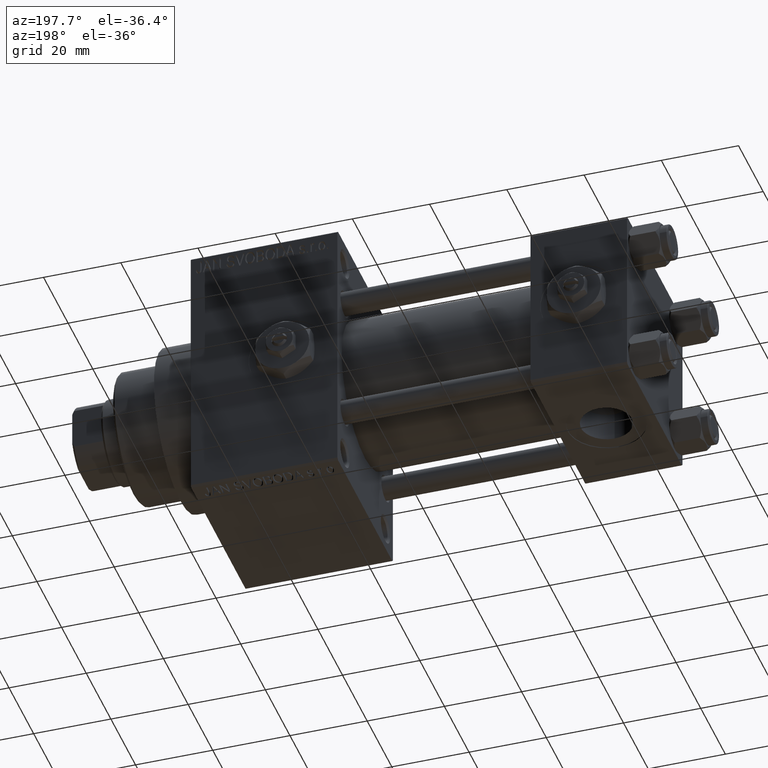
[diagram: clean part render]
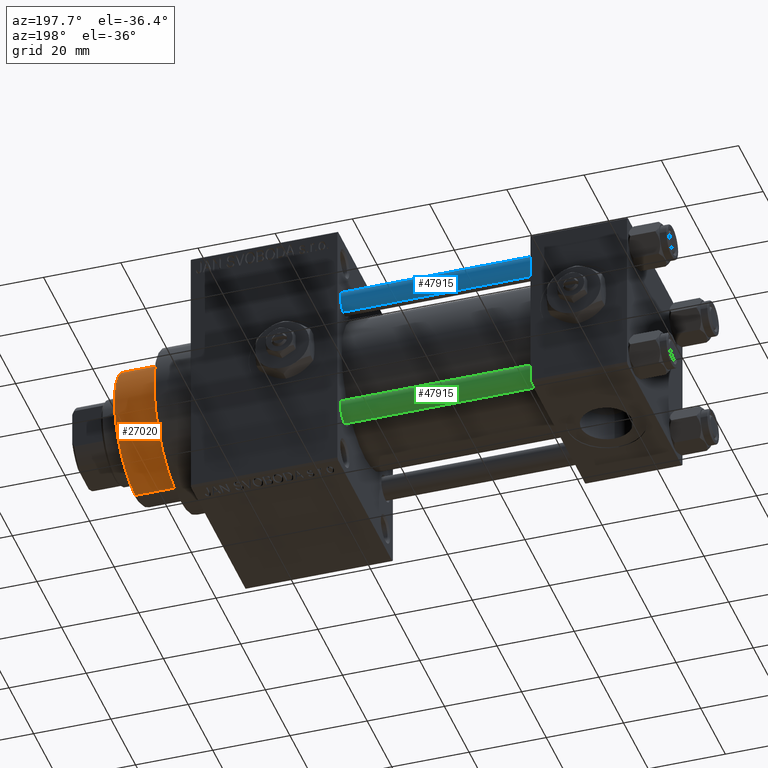
[diagram: same view with three faces highlighted in distinct colors, each labeled with its STEP entity id]
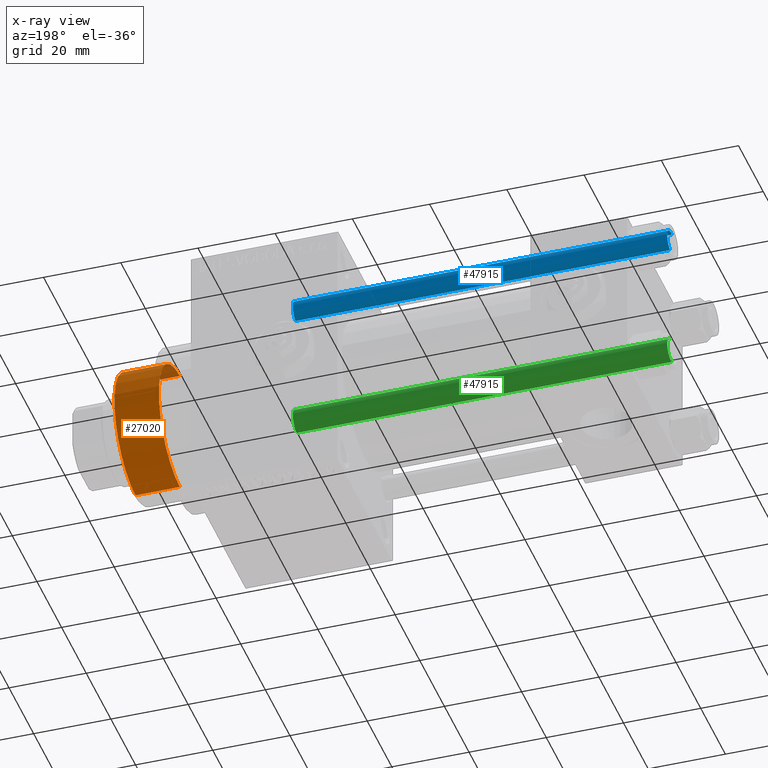
[diagram: x-ray of the same camera — body ghosted, the three highlighted faces saturated]
A machine part, auxiliary view with three faces highlighted in distinct colors.
The next image is the same camera in x-ray (body ghosted, the three faces saturated) — at least one of them is partly hidden behind the body in this view.
Their STEP definitions:

[orange] entity #27020 — the highlighted cylindrical surface (partial cylindrical patch) has radius 17 mm, axis along (-1, 0, 0).
#870 = CYLINDRICAL_SURFACE ( 'NONE', #14083, 17.00000000000000000 ) ;
#1911 = EDGE_CURVE ( 'NONE', #46963, #4127, #16570, .T. ) ;
#4127 = VERTEX_POINT ( 'NONE', #5128 ) ;
#4232 = ORIENTED_EDGE ( 'NONE', *, *, #13704, .T. ) ;
#5128 = CARTESIAN_POINT ( 'NONE',  ( -17.00000000000000000, 0.000000000000000000, 54.76000000000001222 ) ) ;
#10673 = CARTESIAN_POINT ( 'NONE',  ( 0.000000000000000000, 0.000000000000000000, 54.76000000000001222 ) ) ;
#10697 = CIRCLE ( 'NONE', #44794, 17.00000000000000000 ) ;
#11881 = VERTEX_POINT ( 'NONE', #35335 ) ;
#12088 = LINE ( 'NONE', #19990, #26778 ) ;
#12798 = FACE_OUTER_BOUND ( 'NONE', #35561, .T. ) ;
#13704 = EDGE_CURVE ( 'NONE', #4127, #11881, #40146, .T. ) ;
#14083 = AXIS2_PLACEMENT_3D ( 'NONE', #27929, #39607, #19737 ) ;
#16570 = CIRCLE ( 'NONE', #44339, 17.00000000000000000 ) ;
#17032 = CARTESIAN_POINT ( 'NONE',  ( -17.00000000000000000, 0.000000000000000000, 55.26000000000000512 ) ) ;
#18745 = DIRECTION ( 'NONE',  ( 1.000000000000000000, 0.000000000000000000, 0.000000000000000000 ) ) ;
#19737 = DIRECTION ( 'NONE',  ( -1.000000000000000000, 0.000000000000000000, 0.000000000000000000 ) ) ;
#19990 = CARTESIAN_POINT ( 'NONE',  ( 17.00000000000000000, 2.081899558550500280E-15, 55.26000000000000512 ) ) ;
#21993 = CARTESIAN_POINT ( 'NONE',  ( 0.000000000000000000, 0.000000000000000000, 43.25999999999999801 ) ) ;
#22234 = DIRECTION ( 'NONE',  ( 0.000000000000000000, 0.000000000000000000, 1.000000000000000000 ) ) ;
#23822 = ORIENTED_EDGE ( 'NONE', *, *, #1911, .T. ) ;
#26292 = ORIENTED_EDGE ( 'NONE', *, *, #46859, .T. ) ;
#26545 = VERTEX_POINT ( 'NONE', #42426 ) ;
#26778 = VECTOR ( 'NONE', #35652, 1000.000000000000000 ) ;
#27020 = ADVANCED_FACE ( 'NONE', ( #12798 ), #870, .T. ) ;
#27929 = CARTESIAN_POINT ( 'NONE',  ( 0.000000000000000000, 0.000000000000000000, 55.26000000000000512 ) ) ;
#28207 = DIRECTION ( 'NONE',  ( -0.000000000000000000, -0.000000000000000000, -1.000000000000000000 ) ) ;
#31067 = EDGE_CURVE ( 'NONE', #46963, #26545, #12088, .T. ) ;
#34398 = CARTESIAN_POINT ( 'NONE',  ( 17.00000000000000000, 2.081899558550500280E-15, 54.76000000000001222 ) ) ;
#35335 = CARTESIAN_POINT ( 'NONE',  ( -17.00000000000000000, 0.000000000000000000, 43.25999999999999801 ) ) ;
#35561 = EDGE_LOOP ( 'NONE', ( #46533, #23822, #4232, #26292 ) ) ;
#35652 = DIRECTION ( 'NONE',  ( -0.000000000000000000, -0.000000000000000000, -1.000000000000000000 ) ) ;
#36978 = DIRECTION ( 'NONE',  ( 1.000000000000000000, 0.000000000000000000, 0.000000000000000000 ) ) ;
#39093 = VECTOR ( 'NONE', #28207, 1000.000000000000000 ) ;
#39607 = DIRECTION ( 'NONE',  ( -0.000000000000000000, -0.000000000000000000, -1.000000000000000000 ) ) ;
#40146 = LINE ( 'NONE', #17032, #39093 ) ;
#42426 = CARTESIAN_POINT ( 'NONE',  ( 17.00000000000000000, 2.081899558550500280E-15, 43.25999999999999801 ) ) ;
#43949 = DIRECTION ( 'NONE',  ( 0.000000000000000000, 0.000000000000000000, -1.000000000000000000 ) ) ;
#44339 = AXIS2_PLACEMENT_3D ( 'NONE', #10673, #43949, #36978 ) ;
#44794 = AXIS2_PLACEMENT_3D ( 'NONE', #21993, #22234, #18745 ) ;
#46533 = ORIENTED_EDGE ( 'NONE', *, *, #31067, .F. ) ;
#46859 = EDGE_CURVE ( 'NONE', #11881, #26545, #10697, .T. ) ;
#46963 = VERTEX_POINT ( 'NONE', #34398 ) ;

[blue] entity #47915 — the highlighted cylindrical surface (edge-blend (fillet) strip) has radius 3 mm, axis along (-1, -0, 0).
#139 = CARTESIAN_POINT ( 'NONE',  ( 0.000000000000000000, 0.000000000000000000, 97.50000000000001421 ) ) ;
#620 = DIRECTION ( 'NONE',  ( 0.000000000000000000, 0.000000000000000000, -1.000000000000000000 ) ) ;
#1032 = DIRECTION ( 'NONE',  ( 1.000000000000000000, 0.000000000000000000, 0.000000000000000000 ) ) ;
#3072 = LINE ( 'NONE', #25668, #28278 ) ;
#3268 = CIRCLE ( 'NONE', #31035, 3.000000000000000444 ) ;
#3437 = AXIS2_PLACEMENT_3D ( 'NONE', #48791, #29911, #45069 ) ;
#6656 = VERTEX_POINT ( 'NONE', #12360 ) ;
#7755 = CARTESIAN_POINT ( 'NONE',  ( 3.000000000000000444, 3.673940397442060361E-16, 0.5000000000000281997 ) ) ;
#7913 = EDGE_CURVE ( 'NONE', #25225, #29424, #3268, .T. ) ;
#12308 = DIRECTION ( 'NONE',  ( 1.000000000000000000, 0.000000000000000000, 0.000000000000000000 ) ) ;
#12360 = CARTESIAN_POINT ( 'NONE',  ( -3.000000000000000444, 0.000000000000000000, 0.5000000000000281997 ) ) ;
#14292 = FACE_OUTER_BOUND ( 'NONE', #20004, .T. ) ;
#16180 = VERTEX_POINT ( 'NONE', #7755 ) ;
#16461 = AXIS2_PLACEMENT_3D ( 'NONE', #46978, #44190, #1032 ) ;
#18443 = DIRECTION ( 'NONE',  ( -0.000000000000000000, -0.000000000000000000, -1.000000000000000000 ) ) ;
#19353 = DIRECTION ( 'NONE',  ( -0.000000000000000000, -0.000000000000000000, -1.000000000000000000 ) ) ;
#19592 = LINE ( 'NONE', #25892, #37220 ) ;
#20004 = EDGE_LOOP ( 'NONE', ( #28927, #44370, #25026, #27645 ) ) ;
#24858 = CARTESIAN_POINT ( 'NONE',  ( -3.000000000000000444, 0.000000000000000000, 97.50000000000001421 ) ) ;
#25026 = ORIENTED_EDGE ( 'NONE', *, *, #27981, .T. ) ;
#25111 = EDGE_CURVE ( 'NONE', #25225, #6656, #3072, .T. ) ;
#25225 = VERTEX_POINT ( 'NONE', #24858 ) ;
#25668 = CARTESIAN_POINT ( 'NONE',  ( -3.000000000000000444, 0.000000000000000000, 98.00000000000000000 ) ) ;
#25892 = CARTESIAN_POINT ( 'NONE',  ( 3.000000000000000444, 3.673940397442060361E-16, 98.00000000000000000 ) ) ;
#27645 = ORIENTED_EDGE ( 'NONE', *, *, #25111, .F. ) ;
#27981 = EDGE_CURVE ( 'NONE', #16180, #6656, #38705, .T. ) ;
#28278 = VECTOR ( 'NONE', #18443, 1000.000000000000000 ) ;
#28927 = ORIENTED_EDGE ( 'NONE', *, *, #7913, .T. ) ;
#29422 = CYLINDRICAL_SURFACE ( 'NONE', #3437, 3.000000000000000444 ) ;
#29424 = VERTEX_POINT ( 'NONE', #30376 ) ;
#29911 = DIRECTION ( 'NONE',  ( -0.000000000000000000, -0.000000000000000000, -1.000000000000000000 ) ) ;
#30376 = CARTESIAN_POINT ( 'NONE',  ( 3.000000000000000444, 3.673940397442060361E-16, 97.50000000000001421 ) ) ;
#31035 = AXIS2_PLACEMENT_3D ( 'NONE', #139, #620, #12308 ) ;
#34416 = EDGE_CURVE ( 'NONE', #29424, #16180, #19592, .T. ) ;
#37220 = VECTOR ( 'NONE', #19353, 1000.000000000000000 ) ;
#38705 = CIRCLE ( 'NONE', #16461, 3.000000000000000444 ) ;
#44190 = DIRECTION ( 'NONE',  ( -0.000000000000000000, -0.000000000000000000, 1.000000000000000000 ) ) ;
#44370 = ORIENTED_EDGE ( 'NONE', *, *, #34416, .T. ) ;
#45069 = DIRECTION ( 'NONE',  ( -1.000000000000000000, 0.000000000000000000, 0.000000000000000000 ) ) ;
#46978 = CARTESIAN_POINT ( 'NONE',  ( 0.000000000000000000, 0.000000000000000000, 0.5000000000000281997 ) ) ;
#47915 = ADVANCED_FACE ( 'NONE', ( #14292 ), #29422, .T. ) ;
#48791 = CARTESIAN_POINT ( 'NONE',  ( 0.000000000000000000, 0.000000000000000000, 98.00000000000000000 ) ) ;

[green] entity #47915 — the highlighted cylindrical surface (edge-blend (fillet) strip) has radius 3 mm, axis along (1, -0, 0).
#139 = CARTESIAN_POINT ( 'NONE',  ( 0.000000000000000000, 0.000000000000000000, 97.50000000000001421 ) ) ;
#620 = DIRECTION ( 'NONE',  ( 0.000000000000000000, 0.000000000000000000, -1.000000000000000000 ) ) ;
#1032 = DIRECTION ( 'NONE',  ( 1.000000000000000000, 0.000000000000000000, 0.000000000000000000 ) ) ;
#3072 = LINE ( 'NONE', #25668, #28278 ) ;
#3268 = CIRCLE ( 'NONE', #31035, 3.000000000000000444 ) ;
#3437 = AXIS2_PLACEMENT_3D ( 'NONE', #48791, #29911, #45069 ) ;
#6656 = VERTEX_POINT ( 'NONE', #12360 ) ;
#7755 = CARTESIAN_POINT ( 'NONE',  ( 3.000000000000000444, 3.673940397442060361E-16, 0.5000000000000281997 ) ) ;
#7913 = EDGE_CURVE ( 'NONE', #25225, #29424, #3268, .T. ) ;
#12308 = DIRECTION ( 'NONE',  ( 1.000000000000000000, 0.000000000000000000, 0.000000000000000000 ) ) ;
#12360 = CARTESIAN_POINT ( 'NONE',  ( -3.000000000000000444, 0.000000000000000000, 0.5000000000000281997 ) ) ;
#14292 = FACE_OUTER_BOUND ( 'NONE', #20004, .T. ) ;
#16180 = VERTEX_POINT ( 'NONE', #7755 ) ;
#16461 = AXIS2_PLACEMENT_3D ( 'NONE', #46978, #44190, #1032 ) ;
#18443 = DIRECTION ( 'NONE',  ( -0.000000000000000000, -0.000000000000000000, -1.000000000000000000 ) ) ;
#19353 = DIRECTION ( 'NONE',  ( -0.000000000000000000, -0.000000000000000000, -1.000000000000000000 ) ) ;
#19592 = LINE ( 'NONE', #25892, #37220 ) ;
#20004 = EDGE_LOOP ( 'NONE', ( #28927, #44370, #25026, #27645 ) ) ;
#24858 = CARTESIAN_POINT ( 'NONE',  ( -3.000000000000000444, 0.000000000000000000, 97.50000000000001421 ) ) ;
#25026 = ORIENTED_EDGE ( 'NONE', *, *, #27981, .T. ) ;
#25111 = EDGE_CURVE ( 'NONE', #25225, #6656, #3072, .T. ) ;
#25225 = VERTEX_POINT ( 'NONE', #24858 ) ;
#25668 = CARTESIAN_POINT ( 'NONE',  ( -3.000000000000000444, 0.000000000000000000, 98.00000000000000000 ) ) ;
#25892 = CARTESIAN_POINT ( 'NONE',  ( 3.000000000000000444, 3.673940397442060361E-16, 98.00000000000000000 ) ) ;
#27645 = ORIENTED_EDGE ( 'NONE', *, *, #25111, .F. ) ;
#27981 = EDGE_CURVE ( 'NONE', #16180, #6656, #38705, .T. ) ;
#28278 = VECTOR ( 'NONE', #18443, 1000.000000000000000 ) ;
#28927 = ORIENTED_EDGE ( 'NONE', *, *, #7913, .T. ) ;
#29422 = CYLINDRICAL_SURFACE ( 'NONE', #3437, 3.000000000000000444 ) ;
#29424 = VERTEX_POINT ( 'NONE', #30376 ) ;
#29911 = DIRECTION ( 'NONE',  ( -0.000000000000000000, -0.000000000000000000, -1.000000000000000000 ) ) ;
#30376 = CARTESIAN_POINT ( 'NONE',  ( 3.000000000000000444, 3.673940397442060361E-16, 97.50000000000001421 ) ) ;
#31035 = AXIS2_PLACEMENT_3D ( 'NONE', #139, #620, #12308 ) ;
#34416 = EDGE_CURVE ( 'NONE', #29424, #16180, #19592, .T. ) ;
#37220 = VECTOR ( 'NONE', #19353, 1000.000000000000000 ) ;
#38705 = CIRCLE ( 'NONE', #16461, 3.000000000000000444 ) ;
#44190 = DIRECTION ( 'NONE',  ( -0.000000000000000000, -0.000000000000000000, 1.000000000000000000 ) ) ;
#44370 = ORIENTED_EDGE ( 'NONE', *, *, #34416, .T. ) ;
#45069 = DIRECTION ( 'NONE',  ( -1.000000000000000000, 0.000000000000000000, 0.000000000000000000 ) ) ;
#46978 = CARTESIAN_POINT ( 'NONE',  ( 0.000000000000000000, 0.000000000000000000, 0.5000000000000281997 ) ) ;
#47915 = ADVANCED_FACE ( 'NONE', ( #14292 ), #29422, .T. ) ;
#48791 = CARTESIAN_POINT ( 'NONE',  ( 0.000000000000000000, 0.000000000000000000, 98.00000000000000000 ) ) ;